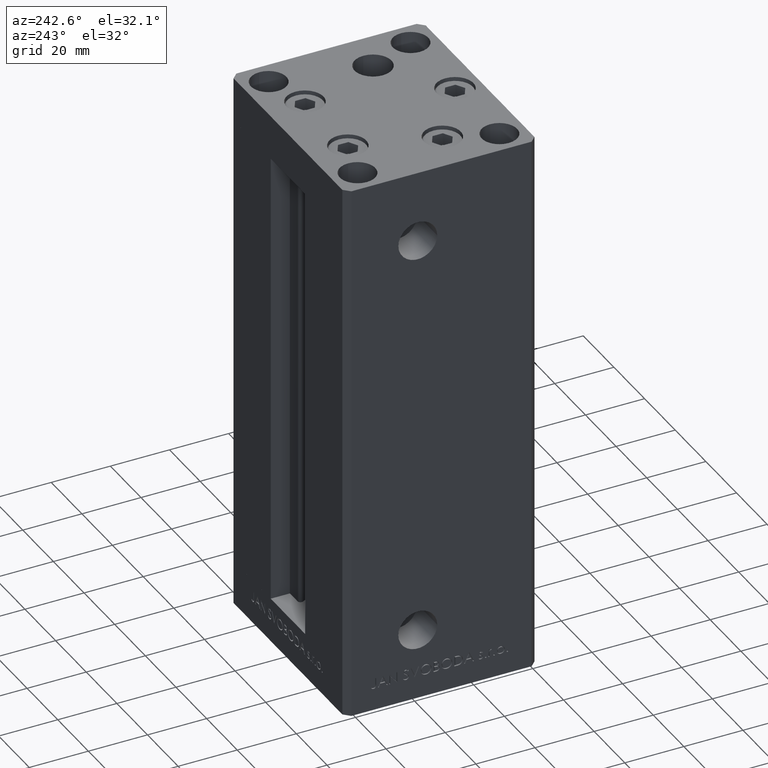
[diagram: clean part render]
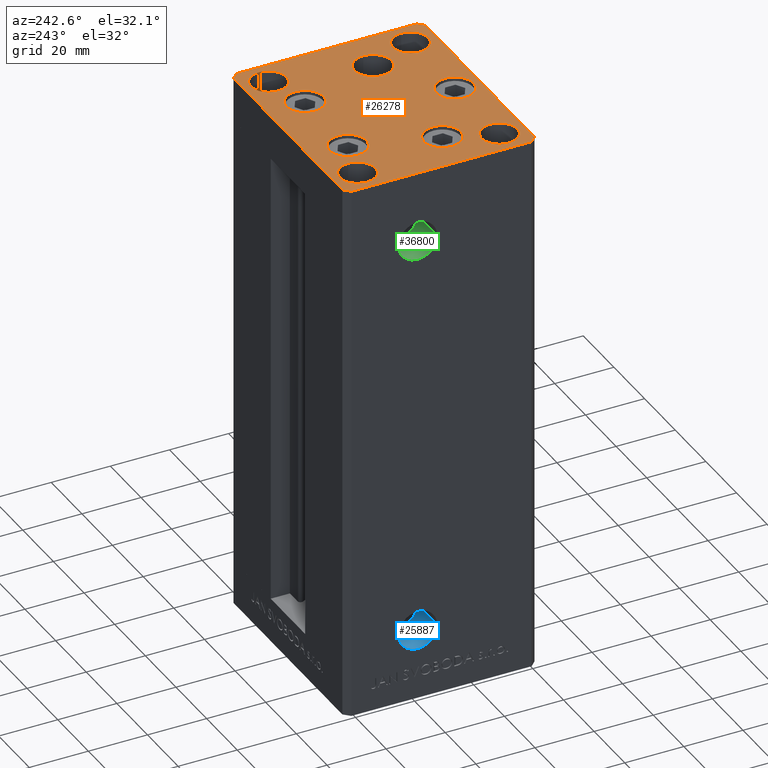
[diagram: same view with three faces highlighted in distinct colors, each labeled with its STEP entity id]
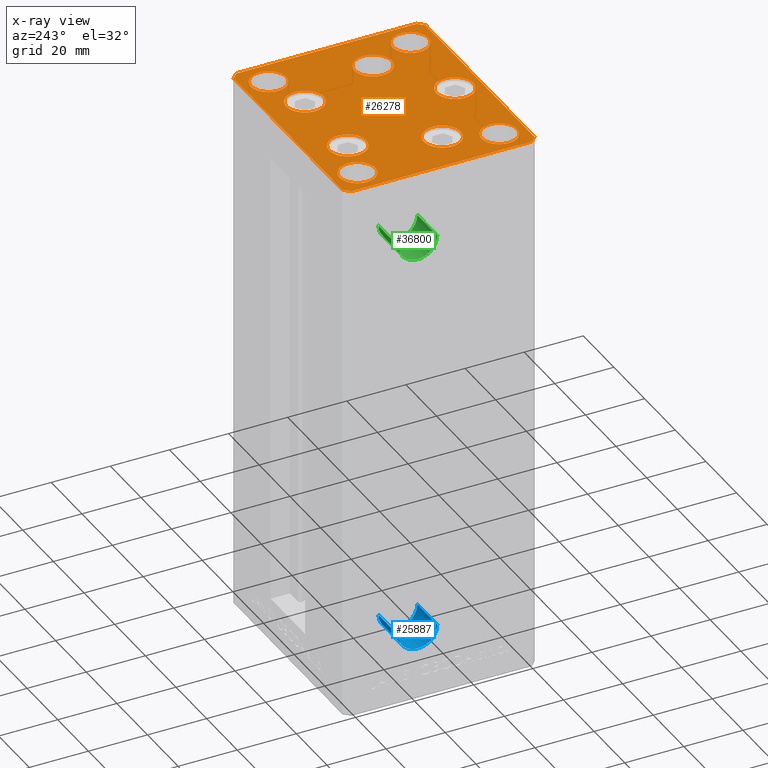
[diagram: x-ray of the same camera — body ghosted, the three highlighted faces saturated]
A machine part, auxiliary view with three faces highlighted in distinct colors.
The next image is the same camera in x-ray (body ghosted, the three faces saturated) — at least one of them is partly hidden behind the body in this view.
Their STEP definitions:

[orange] entity #26278 — the highlighted planar face has unit normal (0, 0, 1).
#139 = CARTESIAN_POINT ( 'NONE',  ( 13.99106857963322348, 19.50000000000000000, 0.000000000000000000 ) ) ;
#389 = VERTEX_POINT ( 'NONE', #38509 ) ;
#394 = CARTESIAN_POINT ( 'NONE',  ( 29.00000000000001066, -23.99999999999999289, 0.000000000000000000 ) ) ;
#402 = ORIENTED_EDGE ( 'NONE', *, *, #42673, .F. ) ;
#836 = VERTEX_POINT ( 'NONE', #45422 ) ;
#919 = CARTESIAN_POINT ( 'NONE',  ( 35.50000000000000711, -32.50000000000000711, 0.000000000000000000 ) ) ;
#1327 = EDGE_CURVE ( 'NONE', #389, #36712, #3889, .T. ) ;
#1393 = DIRECTION ( 'NONE',  ( 1.000000000000000000, 0.000000000000000000, 0.000000000000000000 ) ) ;
#1394 = ORIENTED_EDGE ( 'NONE', *, *, #1327, .T. ) ;
#1487 = AXIS2_PLACEMENT_3D ( 'NONE', #18645, #14854, #45512 ) ;
#1578 = VERTEX_POINT ( 'NONE', #37351 ) ;
#1899 = ORIENTED_EDGE ( 'NONE', *, *, #13476, .T. ) ;
#2429 = EDGE_CURVE ( 'NONE', #27114, #28034, #11939, .T. ) ;
#2738 = DIRECTION ( 'NONE',  ( 0.000000000000000000, -0.000000000000000000, -1.000000000000000000 ) ) ;
#2849 = EDGE_CURVE ( 'NONE', #33838, #42677, #47793, .T. ) ;
#2953 = CARTESIAN_POINT ( 'NONE',  ( 23.00000000000001066, -23.99999999999999289, 0.000000000000000000 ) ) ;
#3082 = CARTESIAN_POINT ( 'NONE',  ( -35.49999999999998579, -32.50000000000001421, 0.000000000000000000 ) ) ;
#3184 = CIRCLE ( 'NONE', #39265, 6.250000000000000000 ) ;
#3592 = VECTOR ( 'NONE', #19738, 1000.000000000000000 ) ;
#3889 = CIRCLE ( 'NONE', #31991, 6.250000000000000000 ) ;
#3894 = EDGE_CURVE ( 'NONE', #7893, #836, #13478, .T. ) ;
#3931 = CARTESIAN_POINT ( 'NONE',  ( -35.00000000000000711, 24.00000000000000711, 0.000000000000000000 ) ) ;
#3994 = AXIS2_PLACEMENT_3D ( 'NONE', #46949, #8495, #5477 ) ;
#4787 = VECTOR ( 'NONE', #20925, 999.9999999999998863 ) ;
#4908 = ORIENTED_EDGE ( 'NONE', *, *, #3894, .F. ) ;
#4926 = EDGE_CURVE ( 'NONE', #43347, #43406, #44095, .T. ) ;
#5248 = AXIS2_PLACEMENT_3D ( 'NONE', #9128, #43063, #31017 ) ;
#5277 = CIRCLE ( 'NONE', #40574, 6.250000000000000000 ) ;
#5477 = DIRECTION ( 'NONE',  ( 1.000000000000000000, 0.000000000000000000, 0.000000000000000000 ) ) ;
#5687 = CARTESIAN_POINT ( 'NONE',  ( 37.50000000000001421, -30.50000000000000711, 0.000000000000000000 ) ) ;
#6042 = CARTESIAN_POINT ( 'NONE',  ( -37.49999999999998579, -30.50000000000001421, 0.000000000000000000 ) ) ;
#6982 = CARTESIAN_POINT ( 'NONE',  ( 13.99106857963322348, 19.50000000000000000, 0.000000000000000000 ) ) ;
#7079 = VERTEX_POINT ( 'NONE', #14334 ) ;
#7618 = EDGE_CURVE ( 'NONE', #34483, #42679, #33692, .T. ) ;
#7729 = VECTOR ( 'NONE', #48521, 1000.000000000000114 ) ;
#7893 = VERTEX_POINT ( 'NONE', #2953 ) ;
#8495 = DIRECTION ( 'NONE',  ( 0.000000000000000000, -0.000000000000000000, -1.000000000000000000 ) ) ;
#8816 = AXIS2_PLACEMENT_3D ( 'NONE', #6982, #2738, #26100 ) ;
#9128 = CARTESIAN_POINT ( 'NONE',  ( -29.00000000000001066, -23.99999999999999289, 0.000000000000000000 ) ) ;
#9678 = CARTESIAN_POINT ( 'NONE',  ( 37.50000000000001421, -30.50000000000000711, 0.000000000000000000 ) ) ;
#9786 = CIRCLE ( 'NONE', #47494, 6.250000000000001776 ) ;
#9817 = CIRCLE ( 'NONE', #38709, 6.250000000000000000 ) ;
#9931 = DIRECTION ( 'NONE',  ( 1.000000000000000000, 0.000000000000000000, 0.000000000000000000 ) ) ;
#10027 = FACE_BOUND ( 'NONE', #35872, .T. ) ;
#10379 = CIRCLE ( 'NONE', #8816, 6.250000000000000000 ) ;
#10582 = VERTEX_POINT ( 'NONE', #42998 ) ;
#10883 = CIRCLE ( 'NONE', #24555, 6.250000000000001776 ) ;
#11064 = CARTESIAN_POINT ( 'NONE',  ( 37.49999999999992184, 30.50000000000001066, 0.000000000000000000 ) ) ;
#11085 = LINE ( 'NONE', #3082, #43876 ) ;
#11118 = AXIS2_PLACEMENT_3D ( 'NONE', #30338, #46392, #45643 ) ;
#11426 = CIRCLE ( 'NONE', #29900, 6.250000000000001776 ) ;
#11427 = ORIENTED_EDGE ( 'NONE', *, *, #36036, .F. ) ;
#11432 = CARTESIAN_POINT ( 'NONE',  ( -7.741068579633227031, 19.49999999999999645, 0.000000000000000000 ) ) ;
#11545 = CARTESIAN_POINT ( 'NONE',  ( -35.50000000000002842, 32.49999999999999289, 0.000000000000000000 ) ) ;
#11939 = CIRCLE ( 'NONE', #36032, 5.999999999999998224 ) ;
#12227 = EDGE_CURVE ( 'NONE', #49459, #33838, #28330, .T. ) ;
#12355 = LINE ( 'NONE', #42770, #21933 ) ;
#12908 = CARTESIAN_POINT ( 'NONE',  ( 28.87741699796952233, -8.000000000000000000, 0.000000000000000000 ) ) ;
#13109 = EDGE_LOOP ( 'NONE', ( #15466, #21858 ) ) ;
#13355 = CARTESIAN_POINT ( 'NONE',  ( 37.49999999999992184, 30.50000000000001066, 0.000000000000000000 ) ) ;
#13476 = EDGE_CURVE ( 'NONE', #31314, #26800, #9786, .T. ) ;
#13478 = CIRCLE ( 'NONE', #1487, 6.000000000000005329 ) ;
#13504 = CIRCLE ( 'NONE', #27958, 5.999999999999998224 ) ;
#13532 = AXIS2_PLACEMENT_3D ( 'NONE', #17796, #25593, #1393 ) ;
#13706 = CARTESIAN_POINT ( 'NONE',  ( 35.50000000000000711, -32.50000000000000711, 0.000000000000000000 ) ) ;
#13802 = FACE_BOUND ( 'NONE', #13109, .T. ) ;
#13809 = ORIENTED_EDGE ( 'NONE', *, *, #26105, .T. ) ;
#14048 = FACE_OUTER_BOUND ( 'NONE', #40216, .T. ) ;
#14053 = EDGE_CURVE ( 'NONE', #18870, #7079, #11426, .T. ) ;
#14138 = DIRECTION ( 'NONE',  ( 0.000000000000000000, -0.000000000000000000, -1.000000000000000000 ) ) ;
#14290 = DIRECTION ( 'NONE',  ( 1.000000000000000000, 0.000000000000000000, 0.000000000000000000 ) ) ;
#14334 = CARTESIAN_POINT ( 'NONE',  ( -16.37741699796951877, -8.000000000000005329, 0.000000000000000000 ) ) ;
#14832 = EDGE_LOOP ( 'NONE', ( #26603, #43969 ) ) ;
#14854 = DIRECTION ( 'NONE',  ( 0.000000000000000000, 0.000000000000000000, 1.000000000000000000 ) ) ;
#15449 = DIRECTION ( 'NONE',  ( 1.000000000000000000, 0.000000000000000000, 0.000000000000000000 ) ) ;
#15466 = ORIENTED_EDGE ( 'NONE', *, *, #7618, .T. ) ;
#15625 = AXIS2_PLACEMENT_3D ( 'NONE', #40616, #41593, #33573 ) ;
#16228 = ORIENTED_EDGE ( 'NONE', *, *, #39385, .T. ) ;
#17555 = EDGE_CURVE ( 'NONE', #28392, #39873, #9817, .T. ) ;
#17714 = CARTESIAN_POINT ( 'NONE',  ( 16.37741699796951877, -8.000000000000000000, 0.000000000000000000 ) ) ;
#17796 = CARTESIAN_POINT ( 'NONE',  ( 29.00000000000001066, 24.00000000000000711, 0.000000000000000000 ) ) ;
#17922 = CARTESIAN_POINT ( 'NONE',  ( 2.939152317953647500E-15, -24.00000000000000000, 0.000000000000000000 ) ) ;
#17975 = DIRECTION ( 'NONE',  ( 0.000000000000000000, 0.000000000000000000, 1.000000000000000000 ) ) ;
#18078 = FACE_BOUND ( 'NONE', #23278, .T. ) ;
#18645 = CARTESIAN_POINT ( 'NONE',  ( 29.00000000000001066, -23.99999999999999289, 0.000000000000000000 ) ) ;
#18755 = ORIENTED_EDGE ( 'NONE', *, *, #17555, .T. ) ;
#18870 = VERTEX_POINT ( 'NONE', #42316 ) ;
#18996 = ORIENTED_EDGE ( 'NONE', *, *, #27927, .F. ) ;
#19089 = ORIENTED_EDGE ( 'NONE', *, *, #37466, .F. ) ;
#19218 = ORIENTED_EDGE ( 'NONE', *, *, #26750, .T. ) ;
#19239 = CARTESIAN_POINT ( 'NONE',  ( 2.939152317953647500E-15, -24.00000000000000000, 0.000000000000000000 ) ) ;
#19367 = CARTESIAN_POINT ( 'NONE',  ( -37.50000000000001421, 30.49999999999998579, 0.000000000000000000 ) ) ;
#19733 = ORIENTED_EDGE ( 'NONE', *, *, #4926, .T. ) ;
#19738 = DIRECTION ( 'NONE',  ( 4.550094363217855288E-16, -1.000000000000000000, 0.000000000000000000 ) ) ;
#19875 = DIRECTION ( 'NONE',  ( 1.000000000000000000, 0.000000000000000000, 0.000000000000000000 ) ) ;
#19982 = EDGE_CURVE ( 'NONE', #42677, #43347, #12355, .T. ) ;
#20072 = DIRECTION ( 'NONE',  ( 0.000000000000000000, -0.000000000000000000, -1.000000000000000000 ) ) ;
#20925 = DIRECTION ( 'NONE',  ( -0.7071067811865482389, 0.7071067811865469066, 0.000000000000000000 ) ) ;
#21026 = DIRECTION ( 'NONE',  ( -1.478780668045802821E-15, 1.000000000000000000, 0.000000000000000000 ) ) ;
#21236 = DIRECTION ( 'NONE',  ( 0.000000000000000000, -0.000000000000000000, -1.000000000000000000 ) ) ;
#21276 = ORIENTED_EDGE ( 'NONE', *, *, #37189, .F. ) ;
#21607 = FACE_BOUND ( 'NONE', #33235, .T. ) ;
#21794 = VECTOR ( 'NONE', #21026, 1000.000000000000000 ) ;
#21858 = ORIENTED_EDGE ( 'NONE', *, *, #26510, .T. ) ;
#21933 = VECTOR ( 'NONE', #27455, 1000.000000000000000 ) ;
#22180 = CARTESIAN_POINT ( 'NONE',  ( 20.24106857963322526, 19.50000000000000000, 0.000000000000000000 ) ) ;
#22284 = ORIENTED_EDGE ( 'NONE', *, *, #23974, .T. ) ;
#22576 = EDGE_LOOP ( 'NONE', ( #42335, #18996 ) ) ;
#23278 = EDGE_LOOP ( 'NONE', ( #19089, #21276 ) ) ;
#23519 = DIRECTION ( 'NONE',  ( 1.000000000000000000, 0.000000000000000000, 0.000000000000000000 ) ) ;
#23922 = EDGE_CURVE ( 'NONE', #7079, #18870, #47739, .T. ) ;
#23974 = EDGE_CURVE ( 'NONE', #43406, #48983, #26782, .T. ) ;
#24225 = CARTESIAN_POINT ( 'NONE',  ( -20.24106857963322881, 19.49999999999999645, 0.000000000000000000 ) ) ;
#24514 = CARTESIAN_POINT ( 'NONE',  ( 22.62741699796951877, -8.000000000000000000, 0.000000000000000000 ) ) ;
#24555 = AXIS2_PLACEMENT_3D ( 'NONE', #38220, #27161, #19875 ) ;
#24796 = CIRCLE ( 'NONE', #11118, 6.000000000000005329 ) ;
#25423 = LINE ( 'NONE', #36725, #7729 ) ;
#25593 = DIRECTION ( 'NONE',  ( 0.000000000000000000, 0.000000000000000000, 1.000000000000000000 ) ) ;
#26100 = DIRECTION ( 'NONE',  ( 1.000000000000000000, 0.000000000000000000, 0.000000000000000000 ) ) ;
#26105 = EDGE_CURVE ( 'NONE', #26800, #31314, #10883, .T. ) ;
#26122 = PLANE ( 'NONE',  #28575 ) ;
#26134 = CARTESIAN_POINT ( 'NONE',  ( -29.00000000000001066, 24.00000000000000711, 0.000000000000000000 ) ) ;
#26160 = VECTOR ( 'NONE', #47128, 1000.000000000000000 ) ;
#26204 = CARTESIAN_POINT ( 'NONE',  ( -35.49999999999998579, -32.50000000000001421, 0.000000000000000000 ) ) ;
#26278 = ADVANCED_FACE ( 'NONE', ( #13802, #10027, #21607, #29649, #33177, #45203, #36934, #48479, #18078, #14048 ), #26122, .T. ) ;
#26510 = EDGE_CURVE ( 'NONE', #42679, #34483, #5277, .T. ) ;
#26603 = ORIENTED_EDGE ( 'NONE', *, *, #14053, .T. ) ;
#26750 = EDGE_CURVE ( 'NONE', #38605, #49459, #28056, .T. ) ;
#26782 = LINE ( 'NONE', #46104, #3592 ) ;
#26800 = VERTEX_POINT ( 'NONE', #17714 ) ;
#27106 = CARTESIAN_POINT ( 'NONE',  ( -22.62741699796951877, -8.000000000000005329, 0.000000000000000000 ) ) ;
#27114 = VERTEX_POINT ( 'NONE', #33425 ) ;
#27161 = DIRECTION ( 'NONE',  ( 0.000000000000000000, -0.000000000000000000, -1.000000000000000000 ) ) ;
#27455 = DIRECTION ( 'NONE',  ( -1.000000000000000000, -1.954618001100629052E-16, 0.000000000000000000 ) ) ;
#27639 = ORIENTED_EDGE ( 'NONE', *, *, #42648, .T. ) ;
#27927 = EDGE_CURVE ( 'NONE', #28034, #27114, #46266, .T. ) ;
#27958 = AXIS2_PLACEMENT_3D ( 'NONE', #26134, #41440, #48976 ) ;
#28034 = VERTEX_POINT ( 'NONE', #37265 ) ;
#28056 = LINE ( 'NONE', #919, #26160 ) ;
#28164 = EDGE_CURVE ( 'NONE', #36737, #38605, #11085, .T. ) ;
#28259 = EDGE_LOOP ( 'NONE', ( #402, #4908 ) ) ;
#28330 = LINE ( 'NONE', #5687, #21794 ) ;
#28392 = VERTEX_POINT ( 'NONE', #34349 ) ;
#28575 = AXIS2_PLACEMENT_3D ( 'NONE', #40940, #37190, #14290 ) ;
#29490 = DIRECTION ( 'NONE',  ( 1.000000000000000000, 0.000000000000000000, 0.000000000000000000 ) ) ;
#29649 = FACE_BOUND ( 'NONE', #36744, .T. ) ;
#29900 = AXIS2_PLACEMENT_3D ( 'NONE', #27106, #20072, #31381 ) ;
#30338 = CARTESIAN_POINT ( 'NONE',  ( 29.00000000000001066, 24.00000000000000711, 0.000000000000000000 ) ) ;
#31017 = DIRECTION ( 'NONE',  ( 1.000000000000000000, 0.000000000000000000, 0.000000000000000000 ) ) ;
#31314 = VERTEX_POINT ( 'NONE', #12908 ) ;
#31381 = DIRECTION ( 'NONE',  ( 1.000000000000000000, 0.000000000000000000, 0.000000000000000000 ) ) ;
#31563 = DIRECTION ( 'NONE',  ( 0.000000000000000000, -0.000000000000000000, -1.000000000000000000 ) ) ;
#31649 = EDGE_CURVE ( 'NONE', #48983, #36737, #25423, .T. ) ;
#31817 = DIRECTION ( 'NONE',  ( 0.000000000000000000, 0.000000000000000000, 1.000000000000000000 ) ) ;
#31991 = AXIS2_PLACEMENT_3D ( 'NONE', #139, #45600, #15449 ) ;
#32660 = VERTEX_POINT ( 'NONE', #45061 ) ;
#32807 = VECTOR ( 'NONE', #47122, 1000.000000000000000 ) ;
#33177 = FACE_BOUND ( 'NONE', #14832, .T. ) ;
#33235 = EDGE_LOOP ( 'NONE', ( #13809, #1899 ) ) ;
#33359 = DIRECTION ( 'NONE',  ( 1.000000000000000000, 0.000000000000000000, 0.000000000000000000 ) ) ;
#33425 = CARTESIAN_POINT ( 'NONE',  ( -23.00000000000001421, -23.99999999999999289, 0.000000000000000000 ) ) ;
#33573 = DIRECTION ( 'NONE',  ( 1.000000000000000000, 0.000000000000000000, 0.000000000000000000 ) ) ;
#33692 = CIRCLE ( 'NONE', #3994, 6.250000000000000000 ) ;
#33736 = DIRECTION ( 'NONE',  ( 1.000000000000000000, 9.773090005503140331E-17, 0.000000000000000000 ) ) ;
#33838 = VERTEX_POINT ( 'NONE', #11064 ) ;
#34349 = CARTESIAN_POINT ( 'NONE',  ( 6.250000000000002665, -24.00000000000000000, 0.000000000000000000 ) ) ;
#34483 = VERTEX_POINT ( 'NONE', #24225 ) ;
#34509 = ORIENTED_EDGE ( 'NONE', *, *, #12227, .T. ) ;
#35331 = DIRECTION ( 'NONE',  ( 1.000000000000000000, 0.000000000000000000, 0.000000000000000000 ) ) ;
#35872 = EDGE_LOOP ( 'NONE', ( #1394, #16228 ) ) ;
#36032 = AXIS2_PLACEMENT_3D ( 'NONE', #46619, #31817, #35331 ) ;
#36036 = EDGE_CURVE ( 'NONE', #44817, #10582, #13504, .T. ) ;
#36083 = CIRCLE ( 'NONE', #38481, 6.000000000000005329 ) ;
#36291 = CIRCLE ( 'NONE', #41903, 5.999999999999998224 ) ;
#36310 = DIRECTION ( 'NONE',  ( 1.000000000000000000, 0.000000000000000000, 0.000000000000000000 ) ) ;
#36712 = VERTEX_POINT ( 'NONE', #22180 ) ;
#36725 = CARTESIAN_POINT ( 'NONE',  ( -37.49999999999998579, -30.50000000000001421, 0.000000000000000000 ) ) ;
#36737 = VERTEX_POINT ( 'NONE', #26204 ) ;
#36744 = EDGE_LOOP ( 'NONE', ( #27639, #18755 ) ) ;
#36934 = FACE_BOUND ( 'NONE', #22576, .T. ) ;
#37189 = EDGE_CURVE ( 'NONE', #1578, #32660, #42414, .T. ) ;
#37190 = DIRECTION ( 'NONE',  ( -0.000000000000000000, 0.000000000000000000, 1.000000000000000000 ) ) ;
#37265 = CARTESIAN_POINT ( 'NONE',  ( -35.00000000000000711, -23.99999999999999289, 0.000000000000000000 ) ) ;
#37351 = CARTESIAN_POINT ( 'NONE',  ( 23.00000000000001066, 24.00000000000000711, 0.000000000000000000 ) ) ;
#37466 = EDGE_CURVE ( 'NONE', #32660, #1578, #24796, .T. ) ;
#38220 = CARTESIAN_POINT ( 'NONE',  ( 22.62741699796951877, -8.000000000000000000, 0.000000000000000000 ) ) ;
#38333 = DIRECTION ( 'NONE',  ( 1.000000000000000000, 0.000000000000000000, 0.000000000000000000 ) ) ;
#38481 = AXIS2_PLACEMENT_3D ( 'NONE', #394, #46112, #23519 ) ;
#38509 = CARTESIAN_POINT ( 'NONE',  ( 7.741068579633223479, 19.50000000000000000, 0.000000000000000000 ) ) ;
#38605 = VERTEX_POINT ( 'NONE', #13706 ) ;
#38709 = AXIS2_PLACEMENT_3D ( 'NONE', #17922, #14138, #29490 ) ;
#39265 = AXIS2_PLACEMENT_3D ( 'NONE', #19239, #31563, #38333 ) ;
#39385 = EDGE_CURVE ( 'NONE', #36712, #389, #10379, .T. ) ;
#39830 = CARTESIAN_POINT ( 'NONE',  ( -35.50000000000002842, 32.49999999999999289, 0.000000000000000000 ) ) ;
#39873 = VERTEX_POINT ( 'NONE', #48811 ) ;
#40152 = ORIENTED_EDGE ( 'NONE', *, *, #31649, .T. ) ;
#40216 = EDGE_LOOP ( 'NONE', ( #40152, #45357, #19218, #34509, #45926, #45544, #19733, #22284 ) ) ;
#40428 = ORIENTED_EDGE ( 'NONE', *, *, #49475, .F. ) ;
#40574 = AXIS2_PLACEMENT_3D ( 'NONE', #47926, #48170, #33359 ) ;
#40616 = CARTESIAN_POINT ( 'NONE',  ( -22.62741699796951877, -8.000000000000005329, 0.000000000000000000 ) ) ;
#40940 = CARTESIAN_POINT ( 'NONE',  ( 0.000000000000000000, 0.000000000000000000, 0.000000000000000000 ) ) ;
#41440 = DIRECTION ( 'NONE',  ( 0.000000000000000000, 0.000000000000000000, 1.000000000000000000 ) ) ;
#41593 = DIRECTION ( 'NONE',  ( 0.000000000000000000, -0.000000000000000000, -1.000000000000000000 ) ) ;
#41903 = AXIS2_PLACEMENT_3D ( 'NONE', #48622, #17975, #9931 ) ;
#42316 = CARTESIAN_POINT ( 'NONE',  ( -28.87741699796952233, -8.000000000000005329, 0.000000000000000000 ) ) ;
#42335 = ORIENTED_EDGE ( 'NONE', *, *, #2429, .F. ) ;
#42414 = CIRCLE ( 'NONE', #13532, 6.000000000000005329 ) ;
#42648 = EDGE_CURVE ( 'NONE', #39873, #28392, #3184, .T. ) ;
#42673 = EDGE_CURVE ( 'NONE', #836, #7893, #36083, .T. ) ;
#42677 = VERTEX_POINT ( 'NONE', #42845 ) ;
#42679 = VERTEX_POINT ( 'NONE', #11432 ) ;
#42770 = CARTESIAN_POINT ( 'NONE',  ( 35.49999999999992184, 32.50000000000000711, 0.000000000000000000 ) ) ;
#42845 = CARTESIAN_POINT ( 'NONE',  ( 35.49999999999992184, 32.50000000000000711, 0.000000000000000000 ) ) ;
#42998 = CARTESIAN_POINT ( 'NONE',  ( -23.00000000000001421, 24.00000000000000711, 0.000000000000000000 ) ) ;
#43063 = DIRECTION ( 'NONE',  ( 0.000000000000000000, 0.000000000000000000, 1.000000000000000000 ) ) ;
#43347 = VERTEX_POINT ( 'NONE', #11545 ) ;
#43406 = VERTEX_POINT ( 'NONE', #19367 ) ;
#43876 = VECTOR ( 'NONE', #33736, 1000.000000000000000 ) ;
#43969 = ORIENTED_EDGE ( 'NONE', *, *, #23922, .T. ) ;
#44095 = LINE ( 'NONE', #39830, #32807 ) ;
#44817 = VERTEX_POINT ( 'NONE', #3931 ) ;
#45061 = CARTESIAN_POINT ( 'NONE',  ( 35.00000000000001421, 24.00000000000000711, 0.000000000000000000 ) ) ;
#45203 = FACE_BOUND ( 'NONE', #28259, .T. ) ;
#45357 = ORIENTED_EDGE ( 'NONE', *, *, #28164, .T. ) ;
#45422 = CARTESIAN_POINT ( 'NONE',  ( 35.00000000000001421, -23.99999999999999289, 0.000000000000000000 ) ) ;
#45512 = DIRECTION ( 'NONE',  ( 1.000000000000000000, 0.000000000000000000, 0.000000000000000000 ) ) ;
#45529 = EDGE_LOOP ( 'NONE', ( #40428, #11427 ) ) ;
#45544 = ORIENTED_EDGE ( 'NONE', *, *, #19982, .T. ) ;
#45600 = DIRECTION ( 'NONE',  ( 0.000000000000000000, -0.000000000000000000, -1.000000000000000000 ) ) ;
#45643 = DIRECTION ( 'NONE',  ( 1.000000000000000000, 0.000000000000000000, 0.000000000000000000 ) ) ;
#45926 = ORIENTED_EDGE ( 'NONE', *, *, #2849, .T. ) ;
#46104 = CARTESIAN_POINT ( 'NONE',  ( -37.50000000000001421, 30.49999999999998579, 0.000000000000000000 ) ) ;
#46112 = DIRECTION ( 'NONE',  ( 0.000000000000000000, 0.000000000000000000, 1.000000000000000000 ) ) ;
#46266 = CIRCLE ( 'NONE', #5248, 5.999999999999998224 ) ;
#46392 = DIRECTION ( 'NONE',  ( 0.000000000000000000, 0.000000000000000000, 1.000000000000000000 ) ) ;
#46619 = CARTESIAN_POINT ( 'NONE',  ( -29.00000000000001066, -23.99999999999999289, 0.000000000000000000 ) ) ;
#46949 = CARTESIAN_POINT ( 'NONE',  ( -13.99106857963322703, 19.49999999999999645, 0.000000000000000000 ) ) ;
#47122 = DIRECTION ( 'NONE',  ( -0.7071067811865426878, -0.7071067811865524577, 0.000000000000000000 ) ) ;
#47128 = DIRECTION ( 'NONE',  ( 0.7071067811865487940, 0.7071067811865463515, 0.000000000000000000 ) ) ;
#47494 = AXIS2_PLACEMENT_3D ( 'NONE', #24514, #21236, #36310 ) ;
#47739 = CIRCLE ( 'NONE', #15625, 6.250000000000001776 ) ;
#47793 = LINE ( 'NONE', #13355, #4787 ) ;
#47926 = CARTESIAN_POINT ( 'NONE',  ( -13.99106857963322703, 19.49999999999999645, 0.000000000000000000 ) ) ;
#48170 = DIRECTION ( 'NONE',  ( 0.000000000000000000, -0.000000000000000000, -1.000000000000000000 ) ) ;
#48479 = FACE_BOUND ( 'NONE', #45529, .T. ) ;
#48521 = DIRECTION ( 'NONE',  ( 0.7071067811865474617, -0.7071067811865474617, 0.000000000000000000 ) ) ;
#48622 = CARTESIAN_POINT ( 'NONE',  ( -29.00000000000001066, 24.00000000000000711, 0.000000000000000000 ) ) ;
#48811 = CARTESIAN_POINT ( 'NONE',  ( -6.249999999999997335, -24.00000000000000000, 0.000000000000000000 ) ) ;
#48976 = DIRECTION ( 'NONE',  ( 1.000000000000000000, 0.000000000000000000, 0.000000000000000000 ) ) ;
#48983 = VERTEX_POINT ( 'NONE', #6042 ) ;
#49459 = VERTEX_POINT ( 'NONE', #9678 ) ;
#49475 = EDGE_CURVE ( 'NONE', #10582, #44817, #36291, .T. ) ;

[blue] entity #25887 — the highlighted cylindrical surface (edge-blend (fillet) strip) has radius 6.58 mm, axis along (-1, -0, -0).
#594 = CARTESIAN_POINT ( 'NONE',  ( -37.50000000000000000, 1.419999999999975060, 9.000000000000007105 ) ) ;
#3826 = DIRECTION ( 'NONE',  ( -1.000000000000000000, -2.275047181608927644E-16, -0.000000000000000000 ) ) ;
#4421 = CIRCLE ( 'NONE', #48525, 6.580000000000002736 ) ;
#7608 = VERTEX_POINT ( 'NONE', #46698 ) ;
#8151 = DIRECTION ( 'NONE',  ( -1.000000000000000000, -2.275047181608927644E-16, 0.000000000000000000 ) ) ;
#8826 = ORIENTED_EDGE ( 'NONE', *, *, #26392, .F. ) ;
#8984 = EDGE_CURVE ( 'NONE', #7608, #47347, #26209, .T. ) ;
#11217 = VECTOR ( 'NONE', #3826, 1000.000000000000000 ) ;
#13833 = ORIENTED_EDGE ( 'NONE', *, *, #31103, .F. ) ;
#15611 = CARTESIAN_POINT ( 'NONE',  ( -24.50000000000000000, 14.57999999999998408, 9.000000000000007105 ) ) ;
#17433 = CARTESIAN_POINT ( 'NONE',  ( -37.50000000000000000, 7.999999999999977796, 9.000000000000007105 ) ) ;
#20321 = DIRECTION ( 'NONE',  ( -1.000000000000000000, -2.275047181608927644E-16, -0.000000000000000000 ) ) ;
#23508 = DIRECTION ( 'NONE',  ( 0.000000000000000000, -1.000000000000000000, 0.000000000000000000 ) ) ;
#24090 = CARTESIAN_POINT ( 'NONE',  ( -24.50000000000000000, 7.999999999999981348, 9.000000000000007105 ) ) ;
#24256 = EDGE_CURVE ( 'NONE', #47347, #46899, #4421, .T. ) ;
#24619 = CIRCLE ( 'NONE', #33442, 6.580000000000002736 ) ;
#25887 = ADVANCED_FACE ( 'NONE', ( #42910 ), #39652, .F. ) ;
#26209 = LINE ( 'NONE', #15611, #11217 ) ;
#26392 = EDGE_CURVE ( 'NONE', #30772, #46899, #39894, .T. ) ;
#26948 = AXIS2_PLACEMENT_3D ( 'NONE', #24090, #20321, #47176 ) ;
#27862 = DIRECTION ( 'NONE',  ( -1.000000000000000000, -2.275047181608927644E-16, -0.000000000000000000 ) ) ;
#29995 = DIRECTION ( 'NONE',  ( 0.000000000000000000, -1.000000000000000000, 0.000000000000000000 ) ) ;
#30772 = VERTEX_POINT ( 'NONE', #41469 ) ;
#31103 = EDGE_CURVE ( 'NONE', #7608, #30772, #24619, .T. ) ;
#33442 = AXIS2_PLACEMENT_3D ( 'NONE', #42580, #8151, #23508 ) ;
#36938 = ORIENTED_EDGE ( 'NONE', *, *, #8984, .T. ) ;
#39652 = CYLINDRICAL_SURFACE ( 'NONE', #26948, 6.580000000000002736 ) ;
#39894 = LINE ( 'NONE', #46942, #42175 ) ;
#40795 = DIRECTION ( 'NONE',  ( -1.000000000000000000, -2.275047181608927644E-16, 0.000000000000000000 ) ) ;
#41239 = ORIENTED_EDGE ( 'NONE', *, *, #24256, .T. ) ;
#41469 = CARTESIAN_POINT ( 'NONE',  ( -24.50000000000000000, 1.419999999999978613, 9.000000000000007105 ) ) ;
#42175 = VECTOR ( 'NONE', #27862, 1000.000000000000000 ) ;
#42580 = CARTESIAN_POINT ( 'NONE',  ( -24.50000000000000000, 7.999999999999981348, 9.000000000000007105 ) ) ;
#42910 = FACE_OUTER_BOUND ( 'NONE', #48966, .T. ) ;
#43734 = CARTESIAN_POINT ( 'NONE',  ( -37.50000000000000000, 14.57999999999998053, 9.000000000000007105 ) ) ;
#46698 = CARTESIAN_POINT ( 'NONE',  ( -24.50000000000000000, 14.57999999999998408, 9.000000000000007105 ) ) ;
#46899 = VERTEX_POINT ( 'NONE', #594 ) ;
#46942 = CARTESIAN_POINT ( 'NONE',  ( -24.50000000000000000, 1.419999999999978613, 9.000000000000007105 ) ) ;
#47176 = DIRECTION ( 'NONE',  ( 0.000000000000000000, -1.000000000000000000, 0.000000000000000000 ) ) ;
#47347 = VERTEX_POINT ( 'NONE', #43734 ) ;
#48525 = AXIS2_PLACEMENT_3D ( 'NONE', #17433, #40795, #29995 ) ;
#48966 = EDGE_LOOP ( 'NONE', ( #13833, #36938, #41239, #8826 ) ) ;

[green] entity #36800 — the highlighted cylindrical surface (edge-blend (fillet) strip) has radius 6.58 mm, axis along (-1, -0, -0).
#914 = LINE ( 'NONE', #35825, #1438 ) ;
#1438 = VECTOR ( 'NONE', #12442, 1000.000000000000000 ) ;
#1953 = VECTOR ( 'NONE', #27592, 1000.000000000000000 ) ;
#4460 = AXIS2_PLACEMENT_3D ( 'NONE', #48964, #14043, #29399 ) ;
#7524 = VERTEX_POINT ( 'NONE', #27113 ) ;
#9802 = CARTESIAN_POINT ( 'NONE',  ( -24.50000000000000000, 7.999999999999994671, 147.0000000000000000 ) ) ;
#12403 = CARTESIAN_POINT ( 'NONE',  ( -24.50000000000000000, 14.58000000000000895, 147.0000000000000000 ) ) ;
#12442 = DIRECTION ( 'NONE',  ( -1.000000000000000000, -2.275047181608927644E-16, -0.000000000000000000 ) ) ;
#13672 = EDGE_LOOP ( 'NONE', ( #37557, #13723, #34315, #30189 ) ) ;
#13723 = ORIENTED_EDGE ( 'NONE', *, *, #23689, .T. ) ;
#14043 = DIRECTION ( 'NONE',  ( -1.000000000000000000, -2.275047181608927644E-16, 0.000000000000000000 ) ) ;
#15311 = EDGE_CURVE ( 'NONE', #7524, #16680, #28333, .T. ) ;
#16680 = VERTEX_POINT ( 'NONE', #22607 ) ;
#17333 = DIRECTION ( 'NONE',  ( -1.000000000000000000, -2.275047181608927644E-16, 0.000000000000000000 ) ) ;
#17446 = VERTEX_POINT ( 'NONE', #12403 ) ;
#19006 = VERTEX_POINT ( 'NONE', #44799 ) ;
#20888 = FACE_OUTER_BOUND ( 'NONE', #13672, .T. ) ;
#21377 = DIRECTION ( 'NONE',  ( -1.000000000000000000, -2.275047181608927644E-16, -0.000000000000000000 ) ) ;
#22607 = CARTESIAN_POINT ( 'NONE',  ( -37.50000000000000000, 1.419999999999975948, 147.0000000000000000 ) ) ;
#23689 = EDGE_CURVE ( 'NONE', #17446, #7524, #35380, .T. ) ;
#25610 = EDGE_CURVE ( 'NONE', #17446, #19006, #26905, .T. ) ;
#26905 = CIRCLE ( 'NONE', #4460, 6.580000000000015170 ) ;
#27113 = CARTESIAN_POINT ( 'NONE',  ( -37.50000000000000000, 14.58000000000000718, 147.0000000000000000 ) ) ;
#27529 = AXIS2_PLACEMENT_3D ( 'NONE', #36435, #17333, #49462 ) ;
#27592 = DIRECTION ( 'NONE',  ( -1.000000000000000000, -2.275047181608927644E-16, -0.000000000000000000 ) ) ;
#28333 = CIRCLE ( 'NONE', #27529, 6.580000000000015170 ) ;
#28817 = AXIS2_PLACEMENT_3D ( 'NONE', #9802, #21377, #32944 ) ;
#29399 = DIRECTION ( 'NONE',  ( 0.000000000000000000, -1.000000000000000000, 0.000000000000000000 ) ) ;
#30189 = ORIENTED_EDGE ( 'NONE', *, *, #35125, .F. ) ;
#32944 = DIRECTION ( 'NONE',  ( 0.000000000000000000, -1.000000000000000000, 0.000000000000000000 ) ) ;
#34315 = ORIENTED_EDGE ( 'NONE', *, *, #15311, .T. ) ;
#34871 = CARTESIAN_POINT ( 'NONE',  ( -24.50000000000000000, 14.58000000000000895, 147.0000000000000000 ) ) ;
#35125 = EDGE_CURVE ( 'NONE', #19006, #16680, #914, .T. ) ;
#35380 = LINE ( 'NONE', #34871, #1953 ) ;
#35825 = CARTESIAN_POINT ( 'NONE',  ( -24.50000000000000000, 1.419999999999979501, 147.0000000000000000 ) ) ;
#36435 = CARTESIAN_POINT ( 'NONE',  ( -37.50000000000000000, 7.999999999999991118, 147.0000000000000000 ) ) ;
#36800 = ADVANCED_FACE ( 'NONE', ( #20888 ), #44239, .F. ) ;
#37557 = ORIENTED_EDGE ( 'NONE', *, *, #25610, .F. ) ;
#44239 = CYLINDRICAL_SURFACE ( 'NONE', #28817, 6.580000000000015170 ) ;
#44799 = CARTESIAN_POINT ( 'NONE',  ( -24.50000000000000000, 1.419999999999979501, 147.0000000000000000 ) ) ;
#48964 = CARTESIAN_POINT ( 'NONE',  ( -24.50000000000000000, 7.999999999999994671, 147.0000000000000000 ) ) ;
#49462 = DIRECTION ( 'NONE',  ( 0.000000000000000000, -1.000000000000000000, 0.000000000000000000 ) ) ;